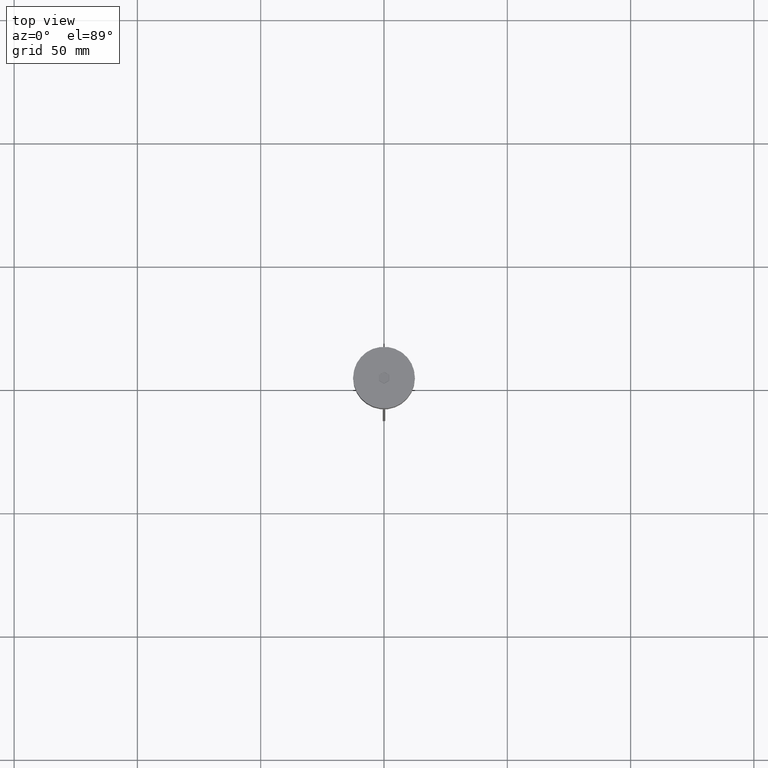
[diagram: clean part render]
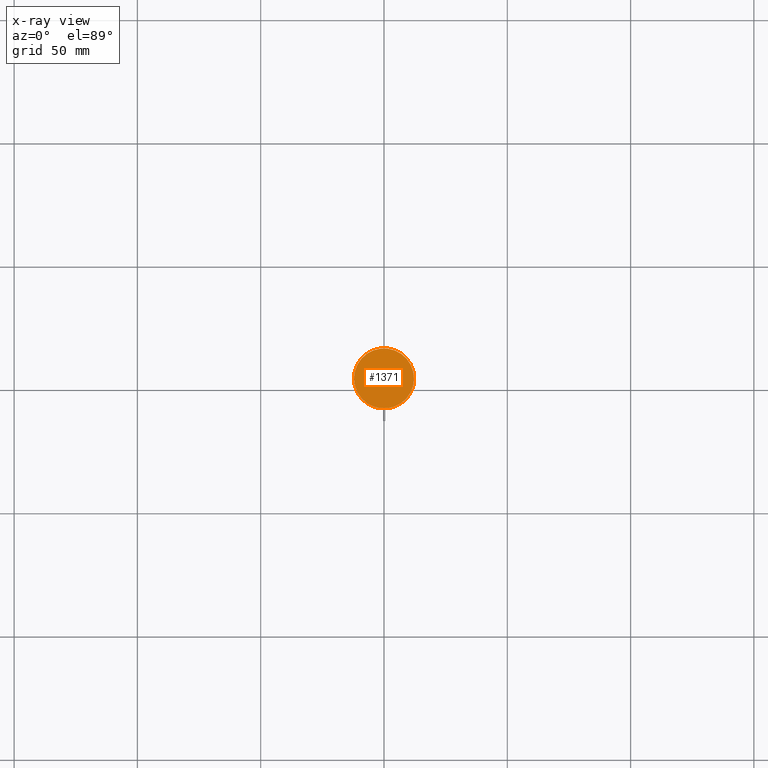
[diagram: x-ray — body ghosted, one internal face saturated and labeled with its STEP entity id]
A machine part, top view, then the same camera in x-ray: the body is ghosted and one INTERNAL B-rep face — a face not visible from any outside direction — is saturated and labeled: STEP entity #1371.
In plain terms, the highlighted planar face has unit normal (0, 0, -1).
Its self-contained STEP definition (entity closure, byte-faithful):
#10 = PLANE ( 'NONE',  #913 ) ;
#347 = CARTESIAN_POINT ( 'NONE',  ( -12.20000000000000639, 0.000000000000000000, -20.49999999999999645 ) ) ;
#527 = VERTEX_POINT ( 'NONE', #1110 ) ;
#567 = CARTESIAN_POINT ( 'NONE',  ( 0.000000000000000000, 0.000000000000000000, -20.49999999999999645 ) ) ;
#663 = AXIS2_PLACEMENT_3D ( 'NONE', #567, #855, #866 ) ;
#664 = DIRECTION ( 'NONE',  ( -1.000000000000000000, 0.000000000000000000, -0.000000000000000000 ) ) ;
#799 = CIRCLE ( 'NONE', #663, 12.20000000000000639 ) ;
#820 = DIRECTION ( 'NONE',  ( 0.000000000000000000, 0.000000000000000000, -1.000000000000000000 ) ) ;
#855 = DIRECTION ( 'NONE',  ( -0.000000000000000000, -0.000000000000000000, 1.000000000000000000 ) ) ;
#858 = ORIENTED_EDGE ( 'NONE', *, *, #1582, .T. ) ;
#866 = DIRECTION ( 'NONE',  ( -1.000000000000000000, 0.000000000000000000, 0.000000000000000000 ) ) ;
#913 = AXIS2_PLACEMENT_3D ( 'NONE', #1631, #820, #664 ) ;
#1008 = CARTESIAN_POINT ( 'NONE',  ( 0.000000000000000000, 0.000000000000000000, -20.49999999999999645 ) ) ;
#1110 = CARTESIAN_POINT ( 'NONE',  ( 12.20000000000000639, 1.512438796946981880E-15, -20.49999999999999645 ) ) ;
#1134 = CIRCLE ( 'NONE', #1471, 12.20000000000000639 ) ;
#1371 = ADVANCED_FACE ( 'NONE', ( #1910 ), #10, .F. ) ;
#1441 = EDGE_LOOP ( 'NONE', ( #1569, #858 ) ) ;
#1471 = AXIS2_PLACEMENT_3D ( 'NONE', #1008, #1829, #1497 ) ;
#1497 = DIRECTION ( 'NONE',  ( -1.000000000000000000, 0.000000000000000000, 0.000000000000000000 ) ) ;
#1569 = ORIENTED_EDGE ( 'NONE', *, *, #1964, .T. ) ;
#1582 = EDGE_CURVE ( 'NONE', #527, #1827, #1134, .T. ) ;
#1631 = CARTESIAN_POINT ( 'NONE',  ( 0.000000000000000000, 0.000000000000000000, -20.49999999999999645 ) ) ;
#1827 = VERTEX_POINT ( 'NONE', #347 ) ;
#1829 = DIRECTION ( 'NONE',  ( -0.000000000000000000, -0.000000000000000000, 1.000000000000000000 ) ) ;
#1910 = FACE_OUTER_BOUND ( 'NONE', #1441, .T. ) ;
#1964 = EDGE_CURVE ( 'NONE', #1827, #527, #799, .T. ) ;